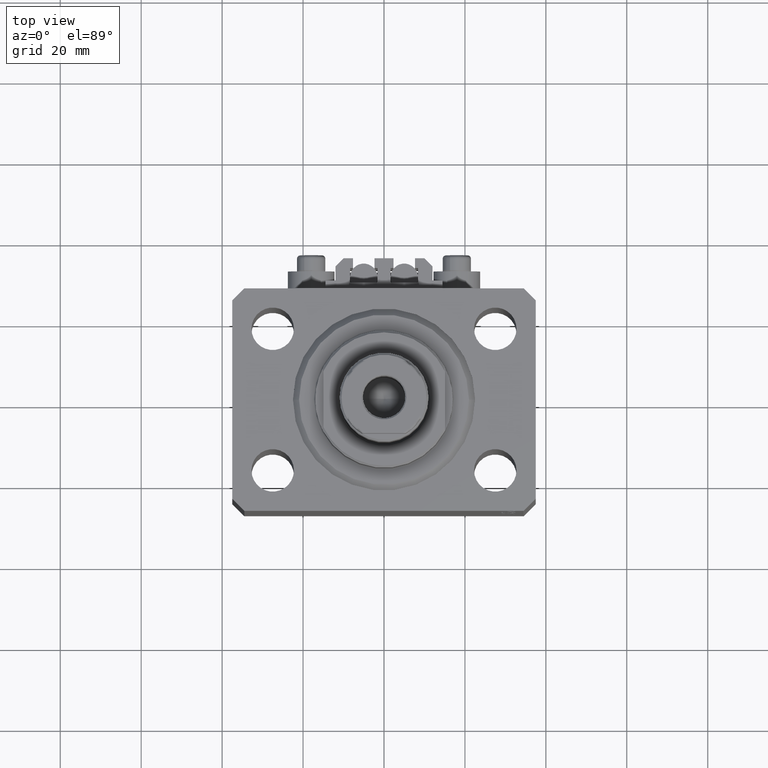
[diagram: clean part render]
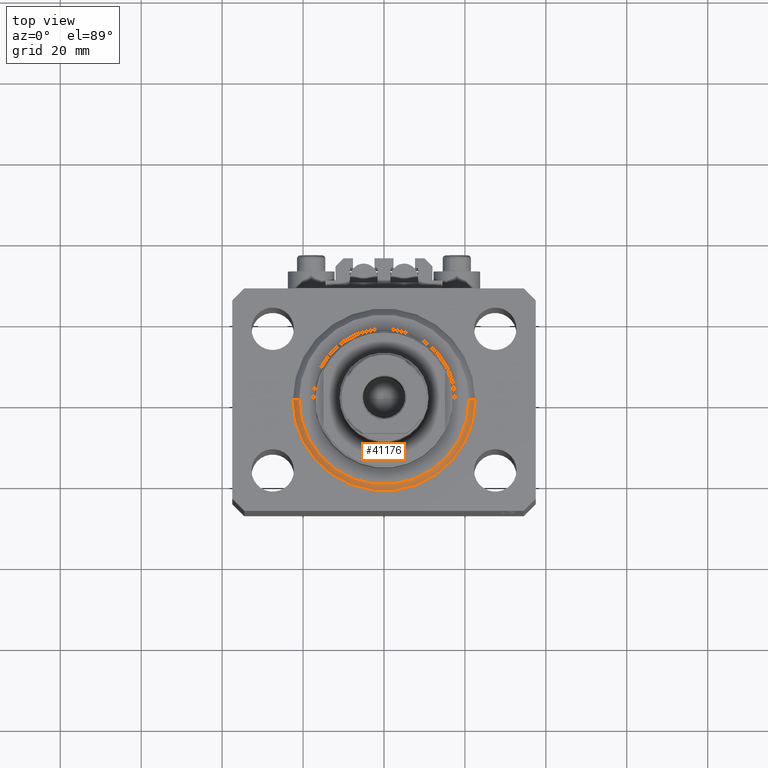
[diagram: same view with one face highlighted and labeled with its STEP entity id]
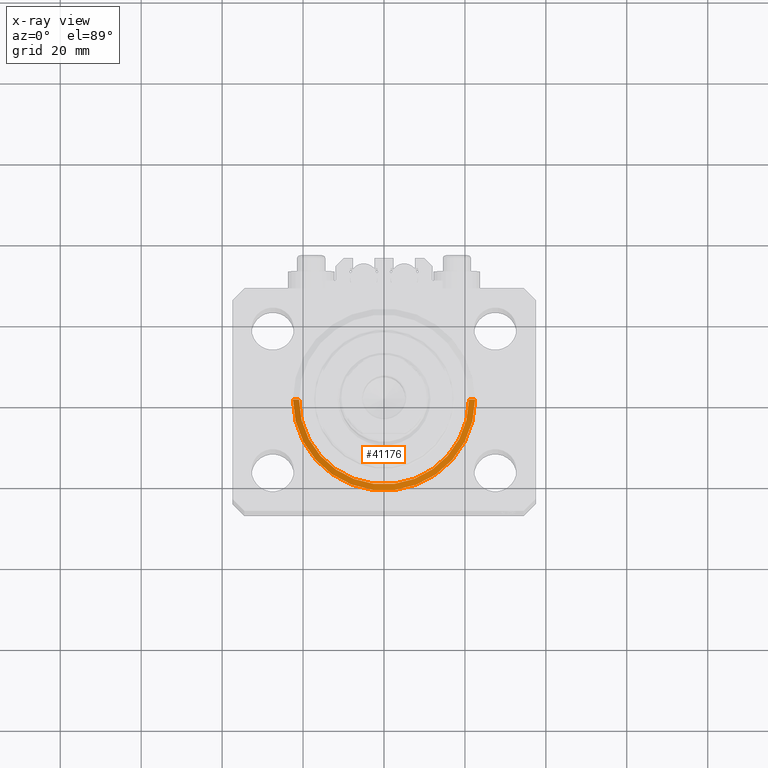
[diagram: x-ray of the same camera — body ghosted, the highlighted face saturated]
A machine part, top view. The second image highlights one B-rep face of the part: STEP entity #41176.
The next image is the same camera in x-ray: the body ghosted, the highlighted face saturated — about 0% of this face is hidden behind the body in this view.
In plain terms, the highlighted conical surface has half-angle 45 deg.
Its self-contained STEP definition (entity closure, byte-faithful):
#1199 = VERTEX_POINT ( 'NONE', #41674 ) ;
#1247 = CARTESIAN_POINT ( 'NONE',  ( 0.000000000000000000, 0.000000000000000000, 1.499999999999994449 ) ) ;
#1283 = LINE ( 'NONE', #31098, #13353 ) ;
#1777 = DIRECTION ( 'NONE',  ( 0.7071067811865491270, 0.000000000000000000, 0.7071067811865459074 ) ) ;
#4672 = FACE_OUTER_BOUND ( 'NONE', #7029, .T. ) ;
#6494 = CIRCLE ( 'NONE', #16420, 21.00000000000000000 ) ;
#6592 = DIRECTION ( 'NONE',  ( -0.7071067811865491270, 8.659560562354953812E-17, 0.7071067811865459074 ) ) ;
#6856 = AXIS2_PLACEMENT_3D ( 'NONE', #1247, #15450, #41583 ) ;
#7029 = EDGE_LOOP ( 'NONE', ( #42282, #40345, #33809, #15080 ) ) ;
#7078 = CARTESIAN_POINT ( 'NONE',  ( -22.50000000000000355, 2.755455298081545172E-15, 1.499999999999994449 ) ) ;
#7433 = VERTEX_POINT ( 'NONE', #39660 ) ;
#10079 = EDGE_CURVE ( 'NONE', #16863, #1199, #1283, .T. ) ;
#11031 = CIRCLE ( 'NONE', #19606, 22.50000000000000355 ) ;
#13353 = VECTOR ( 'NONE', #1777, 1000.000000000000114 ) ;
#14434 = LINE ( 'NONE', #7078, #40620 ) ;
#15080 = ORIENTED_EDGE ( 'NONE', *, *, #28066, .F. ) ;
#15450 = DIRECTION ( 'NONE',  ( -0.000000000000000000, -0.000000000000000000, 1.000000000000000000 ) ) ;
#16420 = AXIS2_PLACEMENT_3D ( 'NONE', #40456, #29730, #33156 ) ;
#16863 = VERTEX_POINT ( 'NONE', #31447 ) ;
#19606 = AXIS2_PLACEMENT_3D ( 'NONE', #39852, #20143, #19913 ) ;
#19913 = DIRECTION ( 'NONE',  ( 1.000000000000000000, 0.000000000000000000, 0.000000000000000000 ) ) ;
#20143 = DIRECTION ( 'NONE',  ( -0.000000000000000000, -0.000000000000000000, 1.000000000000000000 ) ) ;
#22614 = EDGE_CURVE ( 'NONE', #16863, #35199, #6494, .T. ) ;
#28066 = EDGE_CURVE ( 'NONE', #7433, #1199, #11031, .T. ) ;
#29730 = DIRECTION ( 'NONE',  ( -0.000000000000000000, -0.000000000000000000, -1.000000000000000000 ) ) ;
#31098 = CARTESIAN_POINT ( 'NONE',  ( 22.50000000000000355, 0.000000000000000000, 1.499999999999994449 ) ) ;
#31447 = CARTESIAN_POINT ( 'NONE',  ( 21.00000000000000000, 0.000000000000000000, 0.000000000000000000 ) ) ;
#33156 = DIRECTION ( 'NONE',  ( 1.000000000000000000, 0.000000000000000000, 0.000000000000000000 ) ) ;
#33809 = ORIENTED_EDGE ( 'NONE', *, *, #10079, .T. ) ;
#34181 = CONICAL_SURFACE ( 'NONE', #6856, 22.50000000000000355, 0.7853981633974506105 ) ;
#35199 = VERTEX_POINT ( 'NONE', #45598 ) ;
#35753 = EDGE_CURVE ( 'NONE', #35199, #7433, #14434, .T. ) ;
#39660 = CARTESIAN_POINT ( 'NONE',  ( -22.50000000000000355, 0.000000000000000000, 1.499999999999994449 ) ) ;
#39852 = CARTESIAN_POINT ( 'NONE',  ( 0.000000000000000000, 0.000000000000000000, 1.499999999999994449 ) ) ;
#40345 = ORIENTED_EDGE ( 'NONE', *, *, #22614, .F. ) ;
#40456 = CARTESIAN_POINT ( 'NONE',  ( 0.000000000000000000, 0.000000000000000000, 0.000000000000000000 ) ) ;
#40620 = VECTOR ( 'NONE', #6592, 1000.000000000000114 ) ;
#41176 = ADVANCED_FACE ( 'NONE', ( #4672 ), #34181, .T. ) ;
#41583 = DIRECTION ( 'NONE',  ( 1.000000000000000000, 0.000000000000000000, 0.000000000000000000 ) ) ;
#41674 = CARTESIAN_POINT ( 'NONE',  ( 22.50000000000000355, 2.755455298081545172E-15, 1.499999999999994449 ) ) ;
#42282 = ORIENTED_EDGE ( 'NONE', *, *, #35753, .F. ) ;
#45598 = CARTESIAN_POINT ( 'NONE',  ( -21.00000000000000000, 2.663606788145493417E-15, 0.000000000000000000 ) ) ;